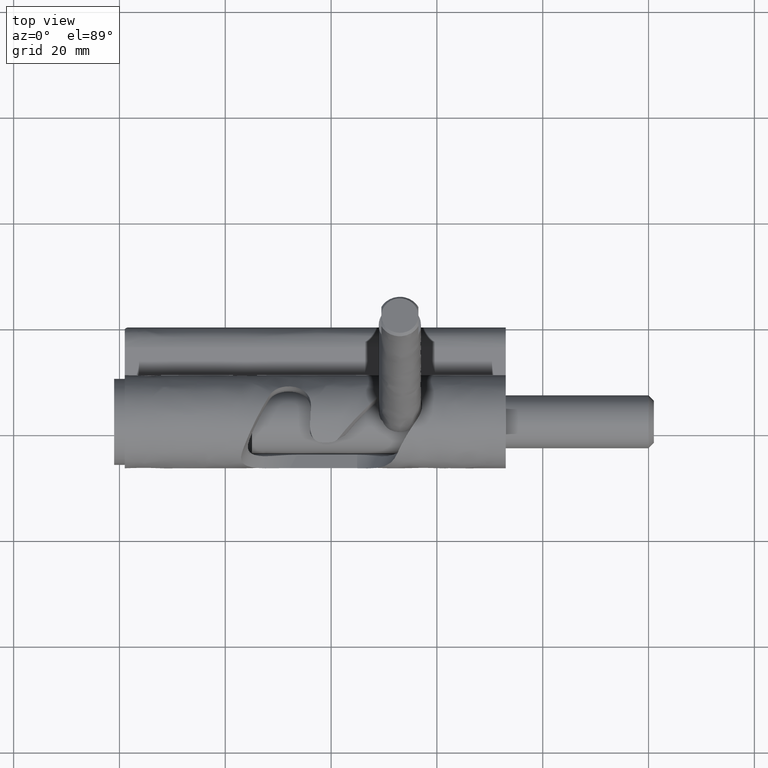
[diagram: clean part render]
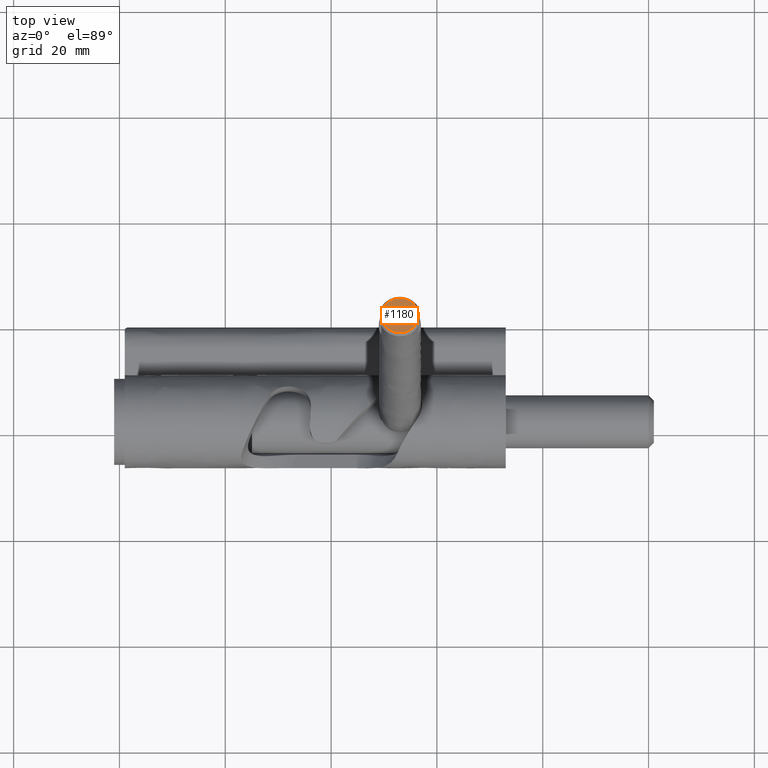
[diagram: same view with one face highlighted and labeled with its STEP entity id]
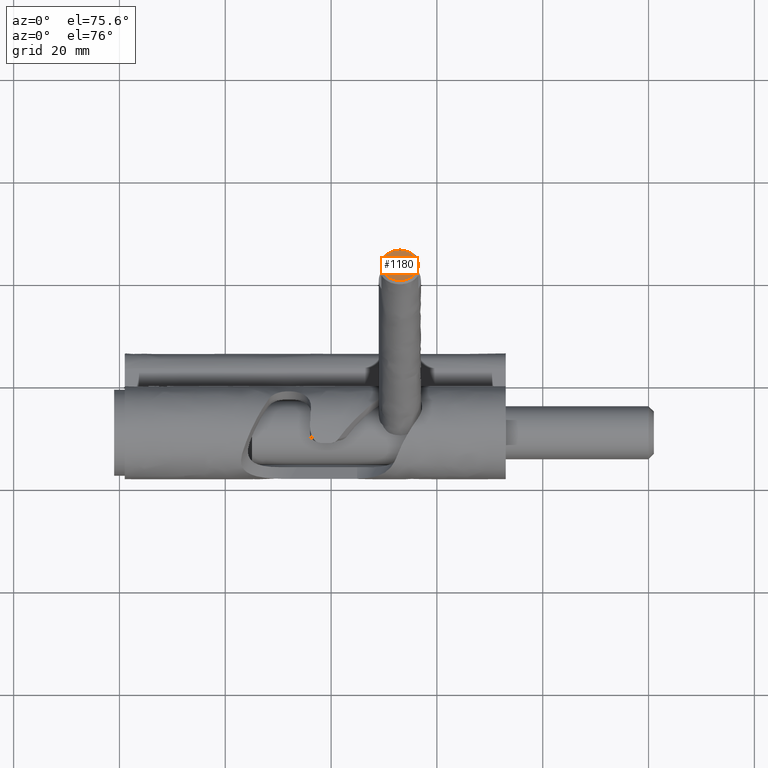
[diagram: same view with one face highlighted and labeled with its STEP entity id]
A machine part, top view. The second image highlights one B-rep face of the part: STEP entity #1180.
A second angle (auxiliary view) of the same face is appended — the face is thin or edge-on in the first view.
In plain terms, the highlighted face is a freeform B-spline surface patch.
Its self-contained STEP definition (entity closure, byte-faithful):
#683=CARTESIAN_POINT('',(-6.999999999999800,-2.135776977042484,75.819863665544091));
#684=VERTEX_POINT('',#683);
#685=CARTESIAN_POINT('',(-5.102792529827111,-1.610664801634109,75.628738403420940));
#686=VERTEX_POINT('',#685);
#687=CARTESIAN_POINT('',(-6.999999999999800,-2.135776977042484,75.819863665544091));
#688=CARTESIAN_POINT('',(-5.969098554291501,-2.135776977042483,75.819863665544091));
#689=CARTESIAN_POINT('',(-5.102792529827111,-1.610664801634109,75.628738403420940));
#697=(BOUNDED_CURVE()B_SPLINE_CURVE(2,(#687,#688,#689),.UNSPECIFIED.,.F.,.U.)B_SPLINE_CURVE_WITH_KNOTS((3,3),(0.0,0.092813655419668),.UNSPECIFIED.)CURVE()GEOMETRIC_REPRESENTATION_ITEM()RATIONAL_B_SPLINE_CURVE((1.0,0.891262038857163,0.863263018966714))REPRESENTATION_ITEM(''));
#698=EDGE_CURVE('',#684,#686,#697,.T.);
#700=CARTESIAN_POINT('',(-8.725889919633250,4.014361367778938,73.581395661410454));
#701=VERTEX_POINT('',#700);
#702=CARTESIAN_POINT('',(-8.725889919633250,4.014361367778938,73.581395661410440));
#703=CARTESIAN_POINT('',(-10.499981001157444,3.069414239064400,73.925328398325689));
#704=CARTESIAN_POINT('',(-10.499981001157440,1.153129220611320,74.622799326630400));
#705=CARTESIAN_POINT('',(-10.499981001157444,-2.135776977042484,75.819863665544105));
#706=CARTESIAN_POINT('',(-6.999999999999800,-2.135776977042484,75.819863665544091));
#714=(BOUNDED_CURVE()B_SPLINE_CURVE(2,(#702,#703,#704,#705,#706),.UNSPECIFIED.,.F.,.U.)B_SPLINE_CURVE_WITH_KNOTS((3,2,3),(0.584051944034732,0.750000000000000,1.0),.UNSPECIFIED.)CURVE()GEOMETRIC_REPRESENTATION_ITEM()RATIONAL_B_SPLINE_CURVE((0.869268806226916,0.805579758929990,1.0,0.707106781186548,1.0))REPRESENTATION_ITEM(''));
#715=EDGE_CURVE('',#701,#684,#714,.T.);
#811=CARTESIAN_POINT('',(-6.999999999999800,4.442035418265124,73.425734987716723));
#812=VERTEX_POINT('',#811);
#813=CARTESIAN_POINT('',(-5.102792529827111,-1.610664801634109,75.628738403420940));
#814=CARTESIAN_POINT('',(-3.500018998842154,-0.639142185157489,75.275132976957991));
#815=CARTESIAN_POINT('',(-3.500018998842155,1.153129220611320,74.622799326630400));
#816=CARTESIAN_POINT('',(-3.500018998842155,4.442035418265124,73.425734987716723));
#817=CARTESIAN_POINT('',(-6.999999999999800,4.442035418265124,73.425734987716723));
#825=(BOUNDED_CURVE()B_SPLINE_CURVE(2,(#813,#814,#815,#816,#817),.UNSPECIFIED.,.F.,.U.)B_SPLINE_CURVE_WITH_KNOTS((3,2,3),(0.092813655419668,0.250000000000000,0.500000000000000),.UNSPECIFIED.)CURVE()GEOMETRIC_REPRESENTATION_ITEM()RATIONAL_B_SPLINE_CURVE((0.863263018966714,0.815844742329385,1.0,0.707106781186548,1.0))REPRESENTATION_ITEM(''));
#826=EDGE_CURVE('',#686,#812,#825,.T.);
#904=CARTESIAN_POINT('',(-6.999999999999800,4.442035418265124,73.425734987716723));
#905=CARTESIAN_POINT('',(-7.922953230636781,4.442035418265124,73.425734987716723));
#906=CARTESIAN_POINT('',(-8.725889919633250,4.014361367778938,73.581395661410440));
#914=(BOUNDED_CURVE()B_SPLINE_CURVE(2,(#904,#905,#906),.UNSPECIFIED.,.F.,.U.)B_SPLINE_CURVE_WITH_KNOTS((3,3),(0.500000000000000,0.584051944034731),.UNSPECIFIED.)CURVE()GEOMETRIC_REPRESENTATION_ITEM()RATIONAL_B_SPLINE_CURVE((1.0,0.901527022256558,0.869268806226917))REPRESENTATION_ITEM(''));
#915=EDGE_CURVE('',#812,#701,#914,.T.);
#1169=CARTESIAN_POINT('',(-10.849511602939280,4.770596740674316,73.306148408299222));
#1170=CARTESIAN_POINT('',(-10.849511602939280,-2.464338358261909,75.939450266366734));
#1171=CARTESIAN_POINT('',(-3.151977596125097,4.770596740674316,73.306148408299222));
#1172=CARTESIAN_POINT('',(-3.151977596125097,-2.464338358261909,75.939450266366734));
#1173=B_SPLINE_SURFACE_WITH_KNOTS('',1,1,((#1169,#1171),(#1170,#1172)),.UNSPECIFIED.,.F.,.F.,.U.,(2,2),(2,2),(0.0,7.699257403251376),(0.0,7.697534006814182),.UNSPECIFIED.);
#1174=ORIENTED_EDGE('',*,*,#698,.T.);
#1175=ORIENTED_EDGE('',*,*,#826,.T.);
#1176=ORIENTED_EDGE('',*,*,#915,.T.);
#1177=ORIENTED_EDGE('',*,*,#715,.T.);
#1178=EDGE_LOOP('',(#1174,#1175,#1176,#1177));
#1179=FACE_OUTER_BOUND('',#1178,.T.);
#1180=ADVANCED_FACE('',(#1179),#1173,.T.);